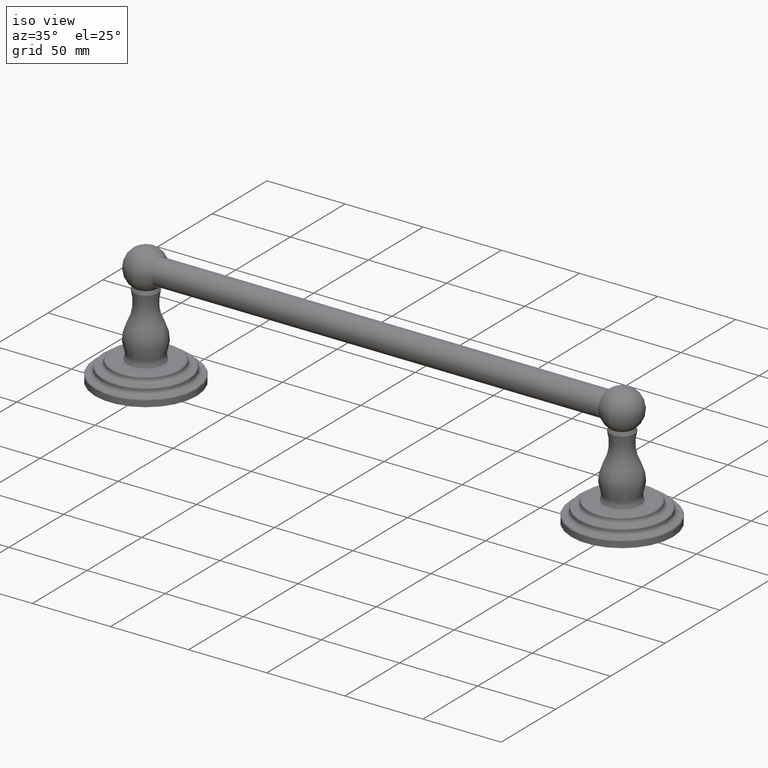
[diagram: clean part render]
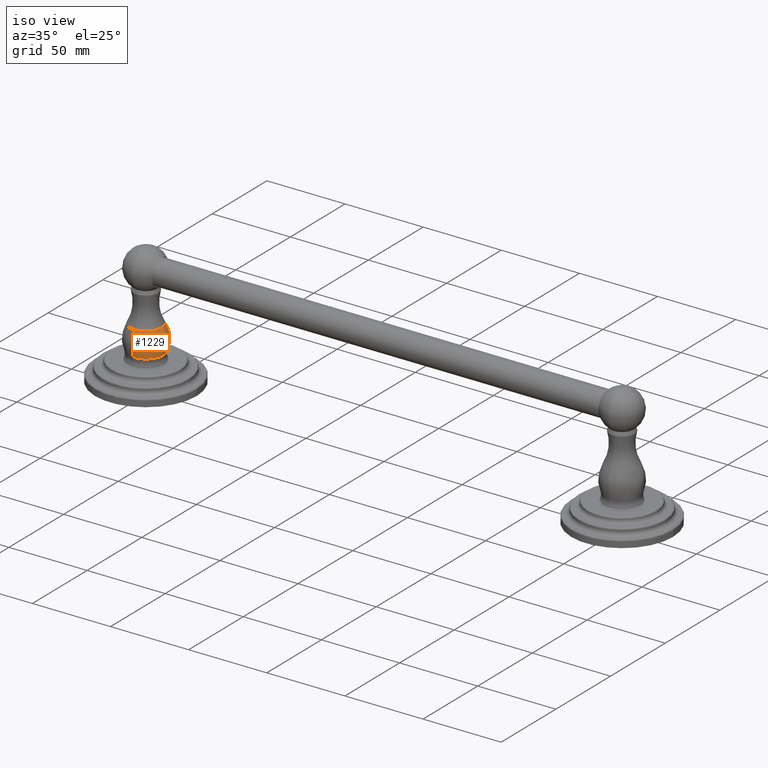
[diagram: same view with one face highlighted and labeled with its STEP entity id]
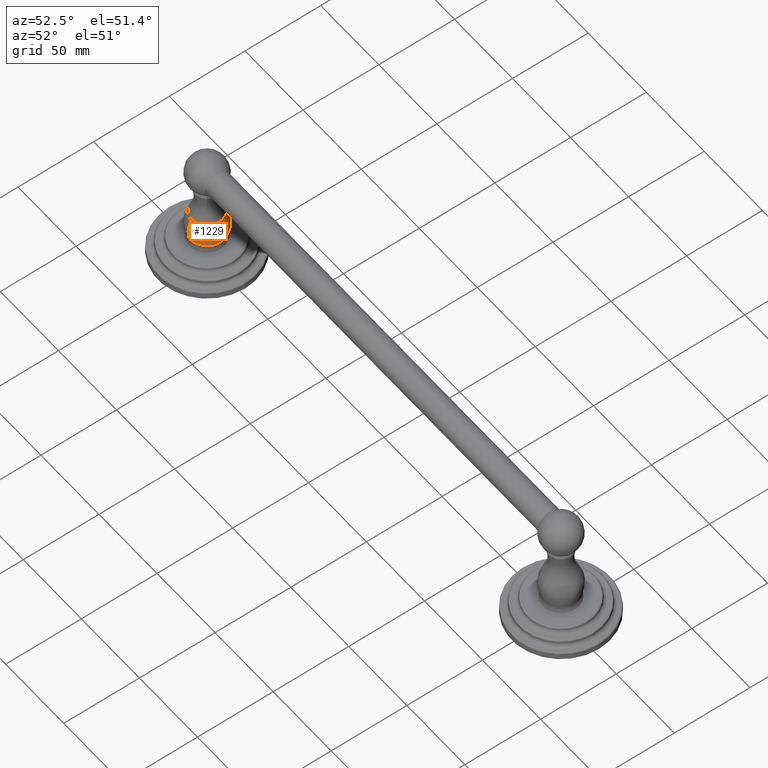
[diagram: same view with one face highlighted and labeled with its STEP entity id]
A machine part, iso view. The second image highlights one B-rep face of the part: STEP entity #1229.
A second angle (auxiliary view) of the same face is appended — the face is thin or edge-on in the first view.
In plain terms, the highlighted face is a freeform B-spline surface patch.
Its self-contained STEP definition (entity closure, byte-faithful):
#219=CARTESIAN_POINT('',(-6.E0,-2.317404452469E-1,9.681354143990E-1));
#220=DIRECTION('',(1.E0,0.E0,0.E0));
#221=DIRECTION('',(0.E0,9.360087340445E-1,-3.519767745071E-1));
#222=AXIS2_PLACEMENT_3D('',#219,#220,#221);
#224=CARTESIAN_POINT('',(-6.E0,0.E0,7.122557875058E-1));
#225=DIRECTION('',(0.E0,0.E0,-1.E0));
#226=DIRECTION('',(0.E0,1.E0,0.E0));
#227=AXIS2_PLACEMENT_3D('',#224,#225,#226);
#229=CARTESIAN_POINT('',(-6.E0,2.317404452469E-1,9.681354143990E-1));
#230=DIRECTION('',(-1.E0,0.E0,0.E0));
#231=DIRECTION('',(0.E0,-9.360087340445E-1,-3.519767745071E-1));
#232=AXIS2_PLACEMENT_3D('',#229,#230,#231);
#244=CARTESIAN_POINT('',(-6.E0,0.E0,1.325407199184E0));
#245=DIRECTION('',(0.E0,0.E0,1.E0));
#246=DIRECTION('',(0.E0,-1.E0,0.E0));
#247=AXIS2_PLACEMENT_3D('',#244,#245,#246);
#774=CARTESIAN_POINT('',(-6.E0,-4.013906146024E-1,1.325407199184E0));
#776=VERTEX_POINT('',#774);
#783=CARTESIAN_POINT('',(-6.E0,4.487179911698E-1,7.122557875058E-1));
#785=VERTEX_POINT('',#783);
#786=CARTESIAN_POINT('',(-6.E0,4.013906146024E-1,1.325407199184E0));
#787=VERTEX_POINT('',#786);
#802=CARTESIAN_POINT('',(-6.E0,-4.487179911698E-1,7.122557875058E-1));
#803=VERTEX_POINT('',#802);
#1204=CARTESIAN_POINT('',(-6.E0,-4.487179911698E-1,7.122557875058E-1));
#1205=CARTESIAN_POINT('',(-6.E0,-5.256862077303E-1,9.169366873902E-1));
#1206=CARTESIAN_POINT('',(-6.E0,-5.088574435806E-1,1.134962304773E0));
#1207=CARTESIAN_POINT('',(-6.E0,-4.013906146024E-1,1.325407199184E0));
#1208=CARTESIAN_POINT('',(-5.102564017660E0,-4.487179911698E-1,
7.122557875058E-1));
#1209=CARTESIAN_POINT('',(-4.948627584539E0,-5.256862077303E-1,
9.169366873902E-1));
#1210=CARTESIAN_POINT('',(-4.982285112839E0,-5.088574435806E-1,
1.134962304773E0));
#1211=CARTESIAN_POINT('',(-5.197218770795E0,-4.013906146024E-1,
1.325407199184E0));
#1212=CARTESIAN_POINT('',(-5.102564017660E0,4.487179911698E-1,
7.122557875058E-1));
#1213=CARTESIAN_POINT('',(-4.948627584539E0,5.256862077303E-1,
9.169366873902E-1));
#1214=CARTESIAN_POINT('',(-4.982285112839E0,5.088574435806E-1,
1.134962304773E0));
#1215=CARTESIAN_POINT('',(-5.197218770795E0,4.013906146024E-1,
1.325407199184E0));
#1216=CARTESIAN_POINT('',(-6.E0,4.487179911698E-1,7.122557875058E-1));
#1217=CARTESIAN_POINT('',(-6.E0,5.256862077303E-1,9.169366873902E-1));
#1218=CARTESIAN_POINT('',(-6.E0,5.088574435806E-1,1.134962304773E0));
#1219=CARTESIAN_POINT('',(-6.E0,4.013906146024E-1,1.325407199184E0));
#1220=(BOUNDED_SURFACE()B_SPLINE_SURFACE(3,3,((#1204,#1205,#1206,#1207),(#1208,
#1209,#1210,#1211),(#1212,#1213,#1214,#1215),(#1216,#1217,#1218,#1219)),
.UNSPECIFIED.,.F.,.F.,.F.)B_SPLINE_SURFACE_WITH_KNOTS((4,4),(4,4),(0.E0,1.E0),(
0.E0,1.E0),.UNSPECIFIED.)GEOMETRIC_REPRESENTATION_ITEM()RATIONAL_B_SPLINE_SURFACE(((2.098475869855E0,1.967174710048E0,1.967174710048E0,2.098475869855E0),(
6.994919566182E-1,6.557249033495E-1,6.557249033495E-1,6.994919566182E-1),(
6.994919566182E-1,6.557249033495E-1,6.557249033495E-1,6.994919566182E-1),(
2.098475869855E0,1.967174710048E0,1.967174710048E0,2.098475869855E0)))REPRESENTATION_ITEM('')SURFACE());
#1222=ORIENTED_EDGE('',*,*,#1221,.T.);
#1223=ORIENTED_EDGE('',*,*,#1194,.T.);
#1225=ORIENTED_EDGE('',*,*,#1224,.T.);
#1226=ORIENTED_EDGE('',*,*,#1197,.F.);
#1227=EDGE_LOOP('',(#1222,#1223,#1225,#1226));
#1228=FACE_OUTER_BOUND('',#1227,.F.);
#1229=ADVANCED_FACE('',(#1228),#1220,.T.);
#223=CIRCLE('',#222,7.269787253762E-1);
#228=CIRCLE('',#227,4.487179911698E-1);
#233=CIRCLE('',#232,7.269787253762E-1);
#248=CIRCLE('',#247,4.013906146024E-1);
#1194=EDGE_CURVE('',#803,#776,#233,.T.);
#1197=EDGE_CURVE('',#785,#787,#223,.T.);
#1221=EDGE_CURVE('',#785,#803,#228,.T.);
#1224=EDGE_CURVE('',#776,#787,#248,.T.);